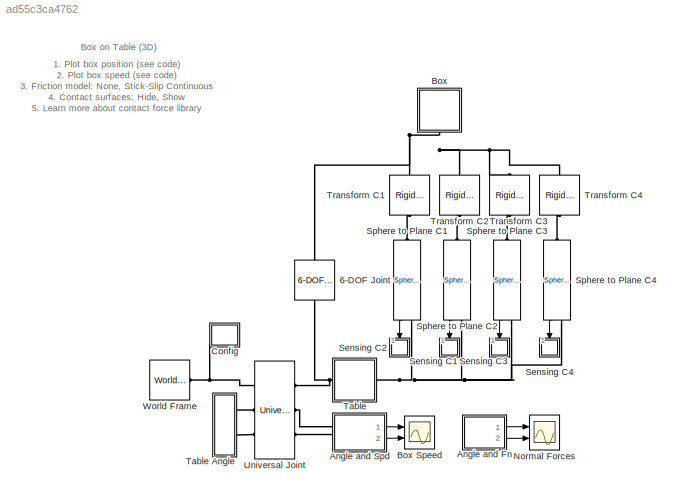
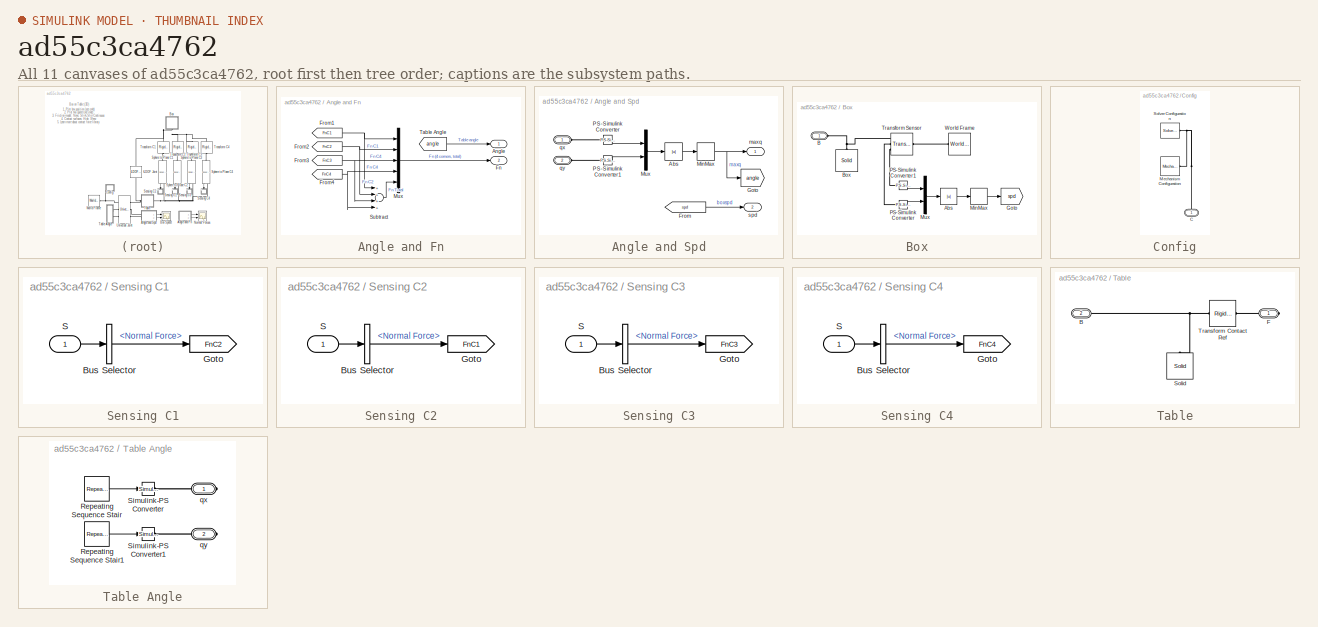
[diagram: thumbnail index - all 11 canvases of the model, root first then tree order]
MODEL slx_ad55c3ca4762
KIND model
CONFIG AbsTol = 1e-5
CONFIG EnableMultiTasking = on
CONFIG FixedStep = auto
CONFIG MaxStep = 1e-2
CONFIG MinStep = auto
CONFIG RelTol = 1e-4
CONFIG SampleTimeConstraint = Unconstrained
CONFIG Solver = ode23t
CONFIG SolverName = ode23t
CONFIG StartFcn = tic;
CONFIG StartTime = 0.0
CONFIG StopFcn = Elapsed_Sim_Time = toc;\ndisp(['Elapsed Sim Time = ' num2str(Elapsed_Sim_Time)]);\n
CONFIG StopTime = 36
WORKSPACE source: MATLAB code (in-file)
WORKSPACE code: box.l = 0.3;
WORKSPACE code: box.h = 0.2;
WORKSPACE code: box.w = 0.3;
WORKSPACE code: table.l = 3;
WORKSPACE code: table.h = 0.1;
WORKSPACE code: table.w = 3;
WORKSPACE rad_contact_sphere = 0.005
WORKSPACE code: boxTable.friction.muk = 0.6;
WORKSPACE code: boxTable.friction.mus = 0.7;
BLOCK [Reference] 6-DOF Joint  REF=sm_lib/Joints/6-DOF Joint
  Ports = [0, 0, 0, 0, 0, 1, 1]
  SourceBlock = sm_lib/Joints/6-DOF Joint
  SourceProductBaseCode = MS
  SourceProductName = Simscape Multibody
  SourceType = 6-DOF Joint
BLOCK [SubSystem] Angle and Fn
  Ports = [0, 2]
  RequestExecContextInheritance = off
BLOCK [Outport] Angle and Fn/Angle
  IconDisplay = Port number
BLOCK [Outport] Angle and Fn/Fn
  IconDisplay = Port number
  Port = 2
BLOCK [From] Angle and Fn/From1
  GotoTag = FnC1
  TagVisibility = global
BLOCK [From] Angle and Fn/From2
  GotoTag = FnC2
  TagVisibility = global
BLOCK [From] Angle and Fn/From3
  GotoTag = FnC3
  TagVisibility = global
BLOCK [From] Angle and Fn/From4
  GotoTag = FnC4
  TagVisibility = global
BLOCK [Mux] Angle and Fn/Mux
  DisplayOption = bar
  Inputs = 5
  Ports = [5, 1]
BLOCK [Sum] Angle and Fn/Subtract
  InputSameDT = off
  Inputs = ++++
  OutDataTypeStr = Inherit: Inherit via internal rule
  Ports = [4, 1]
  SaturateOnIntegerOverflow = off
BLOCK [From] Angle and Fn/Table Angle
  GotoTag = angle
  TagVisibility = global
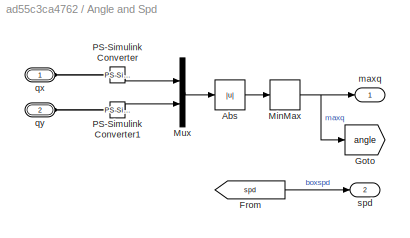
BLOCK [SubSystem] Angle and Spd
  Ports = [0, 2, 0, 0, 0, 2]
  RequestExecContextInheritance = off
BLOCK [Abs] Angle and Spd/Abs
  SaturateOnIntegerOverflow = off
  ZeroCross = off
BLOCK [From] Angle and Spd/From
  GotoTag = spd
  TagVisibility = global
BLOCK [Goto] Angle and Spd/Goto
  GotoTag = angle
  TagVisibility = global
BLOCK [MinMax] Angle and Spd/MinMax
  Function = max
  InputSameDT = off
  Ports = [1, 1]
  SaturateOnIntegerOverflow = off
  ZeroCross = off
BLOCK [Mux] Angle and Spd/Mux
  DisplayOption = bar
  Inputs = 2
  Ports = [2, 1]
BLOCK [Reference] Angle and Spd/PS-Simulink Converter  REF=nesl_utility/PS-Simulink
Converter
  Ports = [0, 1, 0, 0, 0, 1]
  SourceBlock = nesl_utility/PS-Simulink\nConverter
  SourceProductBaseCode = SS
  SourceProductName = Simscape
  SourceType = PS-Simulink\nConverter
BLOCK [Reference] Angle and Spd/PS-Simulink Converter1  REF=nesl_utility/PS-Simulink
Converter
  Ports = [0, 1, 0, 0, 0, 1]
  SourceBlock = nesl_utility/PS-Simulink\nConverter
  SourceProductBaseCode = SS
  SourceProductName = Simscape
  SourceType = PS-Simulink\nConverter
BLOCK [Outport] Angle and Spd/maxq
  IconDisplay = Port number
BLOCK [PMIOPort] Angle and Spd/qx
  Side = Left
BLOCK [PMIOPort] Angle and Spd/qy
  Port = 2
  Side = Left
BLOCK [Outport] Angle and Spd/spd
  IconDisplay = Port number
  Port = 2
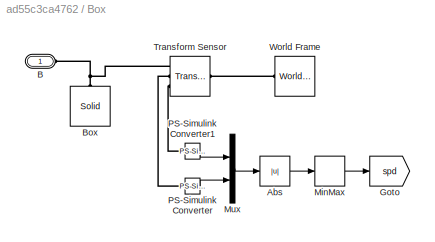
BLOCK [SubSystem] Box
  Ports = [0, 0, 0, 0, 0, 1]
  RequestExecContextInheritance = off
  Tag = CustomStyle
BLOCK [Scope] Box Speed
  Floating = off
  NumInputPorts = 2
  Ports = [2]
  ScopeSpecificationString = C++SS(StrPVP('Location','[632, 68, 951, 365]'),StrPVP('Open','off'),StrPVP('ZoomMode','yonly'),MxPVP('AxesTitles',53,'struct(''axes1'',''Table Angle (deg)'',''axes2'',''Box Velocity (m/s)'')'),MxPVP('ScopeGraphics',56,'struct(''FigureColor'',''[0.501960784313725 0.501960784313725 0.501960784313725]'',''AxesColor'',''[0 0 0]'',''AxesTickColor'',''[1 1 1]'',''LineColors'',''[1 1 0;1 0 1;0 1 1;1 0 0;...<+393ch>
BLOCK [Abs] Box/Abs
  SaturateOnIntegerOverflow = off
  ZeroCross = off
BLOCK [PMIOPort] Box/B
  Side = Left
BLOCK [Reference] Box/Box  REF=sm_lib/Body Elements/Solid
  Ports = [0, 0, 0, 0, 0, 0, 1]
  SourceBlock = sm_lib/Body Elements/Solid
  SourceProductBaseCode = MS
  SourceProductName = Simscape Multibody
  SourceType = Solid
BLOCK [Goto] Box/Goto
  GotoTag = spd
  TagVisibility = global
BLOCK [MinMax] Box/MinMax
  Function = max
  InputSameDT = off
  Ports = [1, 1]
  SaturateOnIntegerOverflow = off
  ZeroCross = off
BLOCK [Mux] Box/Mux
  DisplayOption = bar
  Inputs = 2
  Ports = [2, 1]
BLOCK [Reference] Box/PS-Simulink Converter  REF=nesl_utility/PS-Simulink
Converter
  Ports = [0, 1, 0, 0, 0, 1]
  SourceBlock = nesl_utility/PS-Simulink\nConverter
  SourceProductBaseCode = SS
  SourceProductName = Simscape
  SourceType = PS-Simulink\nConverter
BLOCK [Reference] Box/PS-Simulink Converter1  REF=nesl_utility/PS-Simulink
Converter
  Ports = [0, 1, 0, 0, 0, 1]
  SourceBlock = nesl_utility/PS-Simulink\nConverter
  SourceProductBaseCode = SS
  SourceProductName = Simscape
  SourceType = PS-Simulink\nConverter
BLOCK [Reference] Box/Transform Sensor  REF=sm_lib/Frames and
Transforms/Transform
Sensor
  Ports = [0, 0, 0, 0, 0, 1, 3]
  SourceBlock = sm_lib/Frames and\nTransforms/Transform\nSensor
  SourceProductBaseCode = MS
  SourceProductName = Simscape Multibody
  SourceType = Transform\nSensor
BLOCK [Reference] Box/World Frame  REF=sm_lib/Frames and
Transforms/World Frame
  Ports = [0, 0, 0, 0, 0, 0, 1]
  SourceBlock = sm_lib/Frames and\nTransforms/World Frame
  SourceProductBaseCode = MS
  SourceProductName = Simscape Multibody
  SourceType = World Frame
BLOCK [SubSystem] Config
  Ports = [0, 0, 0, 0, 0, 1]
  RequestExecContextInheritance = off
BLOCK [PMIOPort] Config/C
  Side = Left
BLOCK [Reference] Config/Mechanism Configuration  REF=sm_lib/Utilities/Mechanism
Configuration
  Ports = [0, 0, 0, 0, 0, 0, 1]
  SourceBlock = sm_lib/Utilities/Mechanism\nConfiguration
  SourceProductBaseCode = MS
  SourceProductName = Simscape Multibody
  SourceType = Mechanism\nConfiguration
BLOCK [Reference] Config/Solver Configuration  REF=nesl_utility/Solver
Configuration
  Ports = [0, 0, 0, 0, 0, 0, 1]
  SourceBlock = nesl_utility/Solver\nConfiguration
  SourceProductBaseCode = SS
  SourceProductName = Simscape
  SourceType = Solver\nConfiguration
BLOCK [Scope] Normal Forces
  Floating = off
  NumInputPorts = 2
  Ports = [2]
  ScopeSpecificationString = C++SS(StrPVP('Location','[629, 438, 954, 709]'),StrPVP('Open','off'),StrPVP('ZoomMode','yonly'),MxPVP('AxesTitles',53,'struct(''axes1'',''Table Angle (max)'',''axes2'',''Normal Force (4 corners, total)'')'),MxPVP('ScopeGraphics',56,'struct(''FigureColor'',''[0.501960784313725 0.501960784313725 0.501960784313725]'',''AxesColor'',''[0 0 0]'',''AxesTickColor'',''[1 1 1]'',''LineColors'',''[1 1 0;1 0 ...<+433ch>
BLOCK [SubSystem] Sensing C1
  Ports = [1]
  RequestExecContextInheritance = off
BLOCK [BusSelector] Sensing C1/Bus Selector
  OutputAsBus = off
  OutputSignals = Normal Force
  Ports = [1, 1]
BLOCK [Goto] Sensing C1/Goto
  GotoTag = FnC2
  TagVisibility = global
BLOCK [Inport] Sensing C1/S
  IconDisplay = Port number
BLOCK [SubSystem] Sensing C2
  Ports = [1]
  RequestExecContextInheritance = off
BLOCK [BusSelector] Sensing C2/Bus Selector
  OutputAsBus = off
  OutputSignals = Normal Force
  Ports = [1, 1]
BLOCK [Goto] Sensing C2/Goto
  GotoTag = FnC1
  TagVisibility = global
BLOCK [Inport] Sensing C2/S
  IconDisplay = Port number
BLOCK [SubSystem] Sensing C3
  Ports = [1]
  RequestExecContextInheritance = off
BLOCK [BusSelector] Sensing C3/Bus Selector
  OutputAsBus = off
  OutputSignals = Normal Force
  Ports = [1, 1]
BLOCK [Goto] Sensing C3/Goto
  GotoTag = FnC3
  TagVisibility = global
BLOCK [Inport] Sensing C3/S
  IconDisplay = Port number
BLOCK [SubSystem] Sensing C4
  Ports = [1]
  RequestExecContextInheritance = off
BLOCK [BusSelector] Sensing C4/Bus Selector
  OutputAsBus = off
  OutputSignals = Normal Force
  Ports = [1, 1]
BLOCK [Goto] Sensing C4/Goto
  GotoTag = FnC4
  TagVisibility = global
BLOCK [Inport] Sensing C4/S
  IconDisplay = Port number
BLOCK [Reference] Sphere to Plane C1  REF=Contact_Forces_Lib/3D/Sphere to Plane Force
  Ports = [0, 1, 0, 0, 0, 1, 1]
  SourceBlock = Contact_Forces_Lib/3D/Sphere to Plane Force
  SourceProductName = Simscape Multibody Contact Forces Library
  SourceType = Sphere to Plane Force
BLOCK [Reference] Sphere to Plane C2  REF=Contact_Forces_Lib/3D/Sphere to Plane Force
  Ports = [0, 1, 0, 0, 0, 1, 1]
  SourceBlock = Contact_Forces_Lib/3D/Sphere to Plane Force
  SourceProductName = Simscape Multibody Contact Forces Library
  SourceType = Sphere to Plane Force
BLOCK [Reference] Sphere to Plane C3  REF=Contact_Forces_Lib/3D/Sphere to Plane Force
  Ports = [0, 1, 0, 0, 0, 1, 1]
  SourceBlock = Contact_Forces_Lib/3D/Sphere to Plane Force
  SourceProductName = Simscape Multibody Contact Forces Library
  SourceType = Sphere to Plane Force
BLOCK [Reference] Sphere to Plane C4  REF=Contact_Forces_Lib/3D/Sphere to Plane Force
  Ports = [0, 1, 0, 0, 0, 1, 1]
  SourceBlock = Contact_Forces_Lib/3D/Sphere to Plane Force
  SourceProductName = Simscape Multibody Contact Forces Library
  SourceType = Sphere to Plane Force
BLOCK [SubSystem] Table
  Ports = [0, 0, 0, 0, 0, 1, 1]
  RequestExecContextInheritance = off
  Tag = CustomStyle
BLOCK [SubSystem] Table Angle
  Ports = [0, 0, 0, 0, 0, 0, 2]
  RequestExecContextInheritance = off
BLOCK [Reference] Table Angle/Repeating Sequence Stair  REF=simulink/Sources/Repeating
Sequence
Stair
  Ports = [0, 1]
  SourceBlock = simulink/Sources/Repeating\nSequence\nStair
  SourceProductBaseCode = SL
  SourceProductName = Simulink
  SourceType = Repeating Sequence Stair
BLOCK [Reference] Table Angle/Repeating Sequence Stair1  REF=simulink/Sources/Repeating
Sequence
Stair
  Ports = [0, 1]
  SourceBlock = simulink/Sources/Repeating\nSequence\nStair
  SourceProductBaseCode = SL
  SourceProductName = Simulink
  SourceType = Repeating Sequence Stair
BLOCK [Reference] Table Angle/Simulink-PS Converter  REF=nesl_utility/Simulink-PS
Converter
  Ports = [1, 0, 0, 0, 0, 0, 1]
  SourceBlock = nesl_utility/Simulink-PS\nConverter
  SourceProductBaseCode = SS
  SourceProductName = Simscape
  SourceType = Simulink-PS\nConverter
BLOCK [Reference] Table Angle/Simulink-PS Converter1  REF=nesl_utility/Simulink-PS
Converter
  Ports = [1, 0, 0, 0, 0, 0, 1]
  SourceBlock = nesl_utility/Simulink-PS\nConverter
  SourceProductBaseCode = SS
  SourceProductName = Simscape
  SourceType = Simulink-PS\nConverter
BLOCK [PMIOPort] Table Angle/qx
  Side = Right
BLOCK [PMIOPort] Table Angle/qy
  Port = 2
  Side = Right
BLOCK [PMIOPort] Table/B
  Port = 2
  Side = Left
BLOCK [PMIOPort] Table/F
  Side = Right
BLOCK [Reference] Table/Solid  REF=sm_lib/Body Elements/Solid
  Ports = [0, 0, 0, 0, 0, 0, 1]
  SourceBlock = sm_lib/Body Elements/Solid
  SourceProductBaseCode = MS
  SourceProductName = Simscape Multibody
  SourceType = Solid
BLOCK [Reference] Table/Transform Contact Ref  REF=sm_lib/Frames and
Transforms/Rigid
Transform
  Ports = [0, 0, 0, 0, 0, 1, 1]
  SourceBlock = sm_lib/Frames and\nTransforms/Rigid\nTransform
  SourceProductBaseCode = MS
  SourceProductName = Simscape Multibody
  SourceType = Rigid\nTransform
BLOCK [Reference] Transform C1  REF=sm_lib/Frames and
Transforms/Rigid
Transform
  Ports = [0, 0, 0, 0, 0, 1, 1]
  SourceBlock = sm_lib/Frames and\nTransforms/Rigid\nTransform
  SourceProductBaseCode = MS
  SourceProductName = Simscape Multibody
  SourceType = Rigid\nTransform
BLOCK [Reference] Transform C2  REF=sm_lib/Frames and
Transforms/Rigid
Transform
  Ports = [0, 0, 0, 0, 0, 1, 1]
  SourceBlock = sm_lib/Frames and\nTransforms/Rigid\nTransform
  SourceProductBaseCode = MS
  SourceProductName = Simscape Multibody
  SourceType = Rigid\nTransform
BLOCK [Reference] Transform C3  REF=sm_lib/Frames and
Transforms/Rigid
Transform
  Ports = [0, 0, 0, 0, 0, 1, 1]
  SourceBlock = sm_lib/Frames and\nTransforms/Rigid\nTransform
  SourceProductBaseCode = MS
  SourceProductName = Simscape Multibody
  SourceType = Rigid\nTransform
BLOCK [Reference] Transform C4  REF=sm_lib/Frames and
Transforms/Rigid
Transform
  Ports = [0, 0, 0, 0, 0, 1, 1]
  SourceBlock = sm_lib/Frames and\nTransforms/Rigid\nTransform
  SourceProductBaseCode = MS
  SourceProductName = Simscape Multibody
  SourceType = Rigid\nTransform
BLOCK [Reference] Universal Joint  REF=sm_lib/Joints/Universal
Joint
  Ports = [0, 0, 0, 0, 0, 3, 3]
  SourceBlock = sm_lib/Joints/Universal\nJoint
  SourceProductBaseCode = MS
  SourceProductName = Simscape Multibody
  SourceType = Universal\nJoint
BLOCK [Reference] World Frame  REF=sm_lib/Frames and
Transforms/World Frame
  Ports = [0, 0, 0, 0, 0, 0, 1]
  SourceBlock = sm_lib/Frames and\nTransforms/World Frame
  SourceProductBaseCode = MS
  SourceProductName = Simscape Multibody
  SourceType = World Frame
ANNOTATION (root): 1. Plot box position ( see code ) 2. Plot box speed ( see code ) 3. Friction model: None , Stick-Slip Continuous 4. Contact surfaces: Hide , Show 5. Learn more about contact force library
ANNOTATION (root): Box on Table (3D)
NET Angle and Fn/From1:1 -> Angle and Fn/Mux:1, Angle and Fn/Subtract:1
NET Angle and Fn/From2:1 -> Angle and Fn/Mux:2, Angle and Fn/Subtract:2
NET Angle and Fn/From3:1 -> Angle and Fn/Mux:3, Angle and Fn/Subtract:3
NET Angle and Fn/From4:1 -> Angle and Fn/Mux:4, Angle and Fn/Subtract:4
LINE Angle and Fn/Mux:1 -> Angle and Fn/Fn:1
LINE Angle and Fn/Subtract:1 -> Angle and Fn/Mux:5
LINE Angle and Fn/Table Angle:1 -> Angle and Fn/Angle:1
LINE Angle and Fn:1 -> Normal Forces:1
LINE Angle and Fn:2 -> Normal Forces:2
LINE Angle and Spd/Abs:1 -> Angle and Spd/MinMax:1
LINE Angle and Spd/From:1 -> Angle and Spd/spd:1
NET Angle and Spd/MinMax:1 -> Angle and Spd/Goto:1, Angle and Spd/maxq:1
LINE Angle and Spd/Mux:1 -> Angle and Spd/Abs:1
LINE Angle and Spd/PS-Simulink Converter1:1 -> Angle and Spd/Mux:2
LINE Angle and Spd/PS-Simulink Converter:1 -> Angle and Spd/Mux:1
LINE Angle and Spd:1 -> Box Speed:1
LINE Angle and Spd:2 -> Box Speed:2
LINE Box/Abs:1 -> Box/MinMax:1
LINE Box/MinMax:1 -> Box/Goto:1
LINE Box/Mux:1 -> Box/Abs:1
LINE Box/PS-Simulink Converter1:1 -> Box/Mux:1
LINE Box/PS-Simulink Converter:1 -> Box/Mux:2
LINE Sensing C1/Bus Selector:1 -> Sensing C1/Goto:1
LINE Sensing C1/S:1 -> Sensing C1/Bus Selector:1
LINE Sensing C2/Bus Selector:1 -> Sensing C2/Goto:1
LINE Sensing C2/S:1 -> Sensing C2/Bus Selector:1
LINE Sensing C3/Bus Selector:1 -> Sensing C3/Goto:1
LINE Sensing C3/S:1 -> Sensing C3/Bus Selector:1
LINE Sensing C4/Bus Selector:1 -> Sensing C4/Goto:1
LINE Sensing C4/S:1 -> Sensing C4/Bus Selector:1
LINE Sphere to Plane C1:1 -> Sensing C2:1
LINE Sphere to Plane C2:1 -> Sensing C1:1
LINE Sphere to Plane C3:1 -> Sensing C3:1
LINE Sphere to Plane C4:1 -> Sensing C4:1
LINE Table Angle/Repeating Sequence Stair1:1 -> Table Angle/Simulink-PS Converter1:1
LINE Table Angle/Repeating Sequence Stair:1 -> Table Angle/Simulink-PS Converter:1
PNET net1: 6-DOF Joint:LConn1 -- Table:LConn1 -- Universal Joint:RConn1
PNET net2: 6-DOF Joint:RConn1 -- Box:LConn1 -- Transform C1:LConn1 -- Transform C2:LConn1 -- Transform C3:LConn1 -- Transform C4:LConn1
PLINE Angle and Spd/PS-Simulink Converter1:LConn1 -- Angle and Spd/qy:RConn1
PLINE Angle and Spd/PS-Simulink Converter:LConn1 -- Angle and Spd/qx:RConn1
PLINE Angle and Spd:LConn1 -- Universal Joint:RConn2
PLINE Angle and Spd:LConn2 -- Universal Joint:RConn3
PNET net3: Box/B:RConn1 -- Box/Box:RConn1 -- Box/Transform Sensor:RConn1
PLINE Box/PS-Simulink Converter1:LConn1 -- Box/Transform Sensor:RConn3
PLINE Box/PS-Simulink Converter:LConn1 -- Box/Transform Sensor:RConn2
PLINE Box/Transform Sensor:LConn1 -- Box/World Frame:RConn1
PNET net4: Config/C:RConn1 -- Config/Mechanism Configuration:RConn1 -- Config/Solver Configuration:RConn1
PNET net5: Config:LConn1 -- Universal Joint:LConn1 -- World Frame:RConn1
PLINE Sphere to Plane C1:LConn1 -- Transform C1:RConn1
PNET net6: Sphere to Plane C1:RConn1 -- Sphere to Plane C2:RConn1 -- Sphere to Plane C3:RConn1 -- Sphere to Plane C4:RConn1 -- Table:RConn1
PLINE Sphere to Plane C2:LConn1 -- Transform C2:RConn1
PLINE Sphere to Plane C3:LConn1 -- Transform C3:RConn1
PLINE Sphere to Plane C4:LConn1 -- Transform C4:RConn1
PLINE Table Angle/Simulink-PS Converter1:RConn1 -- Table Angle/qy:RConn1
PLINE Table Angle/Simulink-PS Converter:RConn1 -- Table Angle/qx:RConn1
PLINE Table Angle:RConn1 -- Universal Joint:LConn2
PLINE Table Angle:RConn2 -- Universal Joint:LConn3
PNET net7: Table/B:RConn1 -- Table/Solid:RConn1 -- Table/Transform Contact Ref:LConn1
PLINE Table/F:RConn1 -- Table/Transform Contact Ref:RConn1
note: NET lines group one-source signal fan-out (src -> all destinations, sorted); 1:1 wires keep LINE; PNET lines group multi-terminal physical nets as a canonical sorted terminal list (undirected conserving connections); 2-terminal nets keep the pairwise PLINE form
